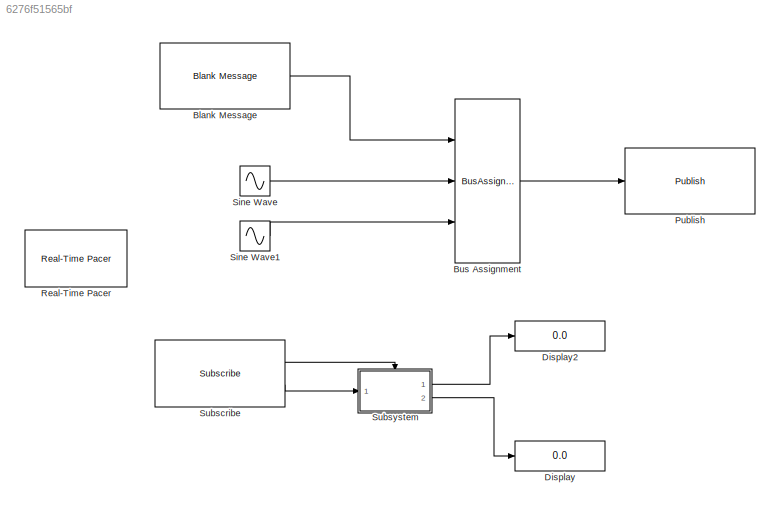
MODEL slx_6276f51565bf
KIND model
CONFIG AbsTol = auto
CONFIG EnableMultiTasking = off
CONFIG FixedStep = 10
CONFIG MaxStep = auto
CONFIG MinStep = auto
CONFIG RelTol = 1e-3
CONFIG SampleTimeConstraint = Unconstrained
CONFIG Solver = FixedStepAuto
CONFIG SolverName = FixedStepAuto
CONFIG StartTime = 0.0
CONFIG StopTime = inf
BLOCK [Reference] Blank Message  REF=robotlib/Blank Message
  Ports = [0, 1]
  SourceBlock = robotlib/Blank Message
  SourceLibraryInfo = This block requires Robotics System Toolbox
  SourceProductBaseCode = RO
  SourceProductName = Robotics System Toolbox
  SourceType = ROS Blank Message
BLOCK [BusAssignment] Bus Assignment
  AssignedSignals = X,Y
  Ports = [3, 1]
BLOCK [Display] Display
  Decimation = 1
  Ports = [1]
BLOCK [Display] Display2
  Decimation = 1
  Ports = [1]
BLOCK [Reference] Publish  REF=robotlib/Publish
  Ports = [1]
  SourceBlock = robotlib/Publish
  SourceLibraryInfo = This block requires Robotics System Toolbox
  SourceProductBaseCode = RO
  SourceProductName = Robotics System Toolbox
  SourceType = ROS Publish
BLOCK [Reference] Real-Time Pacer  REF=realtime_pacer_lib/Real-Time Pacer
  Ports = []
  SourceBlock = realtime_pacer_lib/Real-Time Pacer
  SourceType = RealTime_Pacer
BLOCK [Sin] Sine Wave
  Phase = -pi/2
  Ports = [0, 1]
  SampleTime = 0
BLOCK [Sin] Sine Wave1
  Ports = [0, 1]
  SampleTime = 0
BLOCK [Reference] Subscribe  REF=robotlib/Subscribe
  Ports = [0, 2]
  SourceBlock = robotlib/Subscribe
  SourceLibraryInfo = This block requires Robotics System Toolbox
  SourceProductBaseCode = RO
  SourceProductName = Robotics System Toolbox
  SourceType = ROS Subscribe
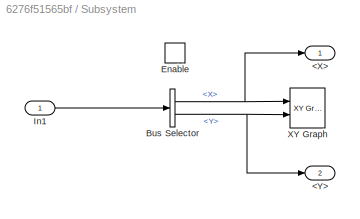
BLOCK [SubSystem] Subsystem
  Ports = [1, 2, 1]
  RequestExecContextInheritance = off
  Variant = off
BLOCK [Outport] Subsystem/<X>
  IconDisplay = Port number
BLOCK [Outport] Subsystem/<Y>
  IconDisplay = Port number
  Port = 2
BLOCK [BusSelector] Subsystem/Bus Selector
  OutputAsBus = off
  OutputSignals = X,Y
  Ports = [1, 2]
BLOCK [EnablePort] Subsystem/Enable
  Ports = []
BLOCK [Inport] Subsystem/In1
  IconDisplay = Port number
BLOCK [Reference] Subsystem/XY Graph  REF=simulink/Sinks/XY Graph
  Ports = [2]
  SourceBlock = simulink/Sinks/XY Graph
  SourceProductBaseCode = SL
  SourceProductName = Simulink
  SourceType = XY scope.
LINE Blank Message:1 -> Bus Assignment:1
LINE Bus Assignment:1 -> Publish:1
LINE Sine Wave1:1 -> Bus Assignment:3
LINE Sine Wave:1 -> Bus Assignment:2
LINE Subscribe:1 -> Subsystem:enable
LINE Subscribe:2 -> Subsystem:1
NET Subsystem/Bus Selector:1 -> Subsystem/<X>:1, Subsystem/XY Graph:1
NET Subsystem/Bus Selector:2 -> Subsystem/<Y>:1, Subsystem/XY Graph:2
LINE Subsystem/In1:1 -> Subsystem/Bus Selector:1
LINE Subsystem:1 -> Display2:1
LINE Subsystem:2 -> Display:1
note: NET lines group one-source signal fan-out (src -> all destinations, sorted); 1:1 wires keep LINE
